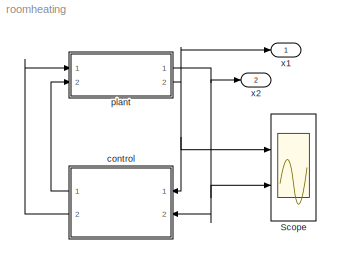
MODEL roomheating
KIND model
BLOCK [Scope] Scope
  DataFormat = StructureWithTime
  Floating = off
  MaxDataPoints = 999999999
  NumInputPorts = 2
  Ports = [2]
  SID = 120
  SampleTime = 0
  ShowLegends = off
  TimeRange = 0.09
  YMax = 20.003~100.004
  YMin = 19.998~99.997
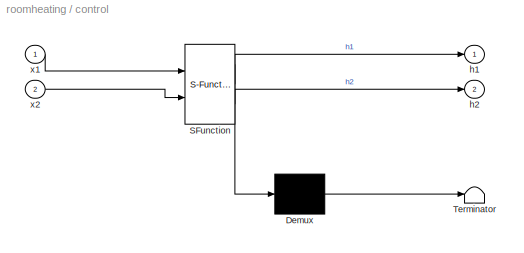
BLOCK [SubSystem] control
  ErrorFcn = Stateflow.Translate.translate
  PermitHierarchicalResolution = ExplicitOnly
  Ports = [2, 2]
  RequestExecContextInheritance = off
  SFBlockType = Chart
  SID = 154
  TreatAsAtomicUnit = on
BLOCK [Demux] control/ Demux 
  Outputs = 1
  Ports = [1, 1]
  SID = 154::47
BLOCK [S-Function] control/ SFunction 
  EnableBusSupport = on
  FunctionName = sf_sfun
  PortCounts = [2 3]
  Ports = [2, 3]
  SID = 154::46
  Tag = Stateflow S-Function roomheating 2
BLOCK [Terminator] control/ Terminator 
  SID = 154::48
BLOCK [Outport] control/h1
  IconDisplay = Port number
  SID = 154::45
BLOCK [Outport] control/h2
  IconDisplay = Port number
  Port = 2
  SID = 154::49
BLOCK [Inport] control/x1
  IconDisplay = Port number
  SID = 154::42
BLOCK [Inport] control/x2
  IconDisplay = Port number
  Port = 2
  SID = 154::43
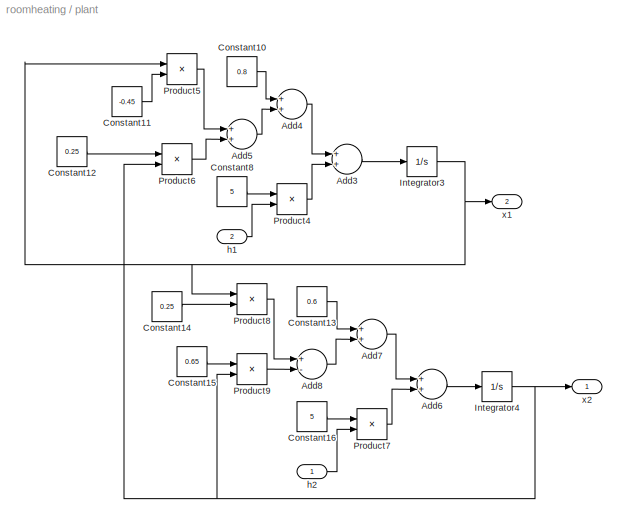
BLOCK [SubSystem] plant
  Ports = [2, 2]
  RequestExecContextInheritance = off
  SID = 132
BLOCK [Sum] plant/Add3
  InputSameDT = off
  OutDataTypeStr = Inherit: Inherit via internal rule
  Ports = [2, 1]
  SID = 170
  SampleTime = 0.001
  SaturateOnIntegerOverflow = off
BLOCK [Sum] plant/Add4
  InputSameDT = off
  OutDataTypeStr = Inherit: Inherit via internal rule
  Ports = [2, 1]
  SID = 173
  SampleTime = 0.001
  SaturateOnIntegerOverflow = off
BLOCK [Sum] plant/Add5
  InputSameDT = off
  OutDataTypeStr = Inherit: Inherit via internal rule
  Ports = [2, 1]
  SID = 175
  SampleTime = 0.001
  SaturateOnIntegerOverflow = off
BLOCK [Sum] plant/Add6
  InputSameDT = off
  OutDataTypeStr = Inherit: Inherit via internal rule
  Ports = [2, 1]
  SID = 181
  SampleTime = 0.001
  SaturateOnIntegerOverflow = off
BLOCK [Sum] plant/Add7
  InputSameDT = off
  OutDataTypeStr = Inherit: Inherit via internal rule
  Ports = [2, 1]
  SID = 182
  SampleTime = 0.001
  SaturateOnIntegerOverflow = off
BLOCK [Sum] plant/Add8
  InputSameDT = off
  Inputs = +-
  OutDataTypeStr = Inherit: Inherit via internal rule
  Ports = [2, 1]
  SID = 183
  SampleTime = 0.001
  SaturateOnIntegerOverflow = off
BLOCK [Constant] plant/Constant10
  SID = 174
  Value = 0.8
BLOCK [Constant] plant/Constant11
  SID = 178
  Value = -0.45
BLOCK [Constant] plant/Constant12
  SID = 179
  Value = 0.25
BLOCK [Constant] plant/Constant13
  SID = 184
  Value = 0.6
BLOCK [Constant] plant/Constant14
  SID = 185
  Value = 0.25
BLOCK [Constant] plant/Constant15
  SID = 186
  Value = 0.65
BLOCK [Constant] plant/Constant16
  SID = 187
  Value = 5
BLOCK [Constant] plant/Constant8
  SID = 168
  Value = 5
BLOCK [Integrator] plant/Integrator3
  InitialCondition = 10
  Ports = [1, 1]
  SID = 171
BLOCK [Integrator] plant/Integrator4
  InitialCondition = 10
  Ports = [1, 1]
  SID = 188
BLOCK [Product] plant/Product4
  InputSameDT = off
  OutDataTypeStr = Inherit: Inherit via internal rule
  Ports = [2, 1]
  SID = 169
  SampleTime = 0.001
  SaturateOnIntegerOverflow = off
BLOCK [Product] plant/Product5
  InputSameDT = off
  OutDataTypeStr = Inherit: Inherit via internal rule
  Ports = [2, 1]
  SID = 176
  SampleTime = 0.001
  SaturateOnIntegerOverflow = off
BLOCK [Product] plant/Product6
  InputSameDT = off
  OutDataTypeStr = Inherit: Inherit via internal rule
  Ports = [2, 1]
  SID = 177
  SampleTime = 0.001
  SaturateOnIntegerOverflow = off
BLOCK [Product] plant/Product7
  InputSameDT = off
  OutDataTypeStr = Inherit: Inherit via internal rule
  Ports = [2, 1]
  SID = 189
  SampleTime = 0.001
  SaturateOnIntegerOverflow = off
BLOCK [Product] plant/Product8
  InputSameDT = off
  OutDataTypeStr = Inherit: Inherit via internal rule
  Ports = [2, 1]
  SID = 190
  SampleTime = 0.001
  SaturateOnIntegerOverflow = off
BLOCK [Product] plant/Product9
  InputSameDT = off
  OutDataTypeStr = Inherit: Inherit via internal rule
  Ports = [2, 1]
  SID = 191
  SampleTime = 0.001
  SaturateOnIntegerOverflow = off
BLOCK [Inport] plant/h1
  IconDisplay = Port number
  Port = 2
  SID = 133
  SampleTime = 0.001
BLOCK [Inport] plant/h2
  IconDisplay = Port number
  SID = 180
  SampleTime = 0.001
BLOCK [Outport] plant/x1
  IconDisplay = Port number
  Port = 2
  SID = 172
  SampleTime = 0.0001
BLOCK [Outport] plant/x2
  IconDisplay = Port number
  SID = 192
  SampleTime = 0.0001
BLOCK [Outport] x1
  IconDisplay = Port number
  SID = 193
  SampleTime = 0
BLOCK [Outport] x2
  IconDisplay = Port number
  Port = 2
  SID = 194
  SampleTime = 0
LINE control/ Demux :1 -> control/ Terminator :1
LINE control/ SFunction :1 -> control/ Demux :1
LINE control/ SFunction :2 -> control/h1:1
LINE control/ SFunction :3 -> control/h2:1
LINE control/x1:1 -> control/ SFunction :1
LINE control/x2:1 -> control/ SFunction :2
LINE control:1 -> plant:2
LINE control:2 -> plant:1
LINE plant/Add3:1 -> plant/Integrator3:1
LINE plant/Add4:1 -> plant/Add3:1
LINE plant/Add5:1 -> plant/Add4:2
LINE plant/Add6:1 -> plant/Integrator4:1
LINE plant/Add7:1 -> plant/Add6:1
LINE plant/Add8:1 -> plant/Add7:2
LINE plant/Constant10:1 -> plant/Add4:1
LINE plant/Constant11:1 -> plant/Product5:2
LINE plant/Constant12:1 -> plant/Product6:1
LINE plant/Constant13:1 -> plant/Add7:1
LINE plant/Constant14:1 -> plant/Product8:2
LINE plant/Constant15:1 -> plant/Product9:1
LINE plant/Constant16:1 -> plant/Product7:1
LINE plant/Constant8:1 -> plant/Product4:1
NET plant/Integrator3:1 -> plant/Product5:1, plant/Product8:1, plant/x1:1
NET plant/Integrator4:1 -> plant/Product6:2, plant/Product9:2, plant/x2:1
LINE plant/Product4:1 -> plant/Add3:2
LINE plant/Product5:1 -> plant/Add5:1
LINE plant/Product6:1 -> plant/Add5:2
LINE plant/Product7:1 -> plant/Add6:2
LINE plant/Product8:1 -> plant/Add8:1
LINE plant/Product9:1 -> plant/Add8:2
LINE plant/h1:1 -> plant/Product4:2
LINE plant/h2:1 -> plant/Product7:2
NET plant:1 -> Scope:2, control:2, x2:1
NET plant:2 -> Scope:1, control:1, x1:1
note: NET lines group one-source signal fan-out (src -> all destinations, sorted); 1:1 wires keep LINE
CHART control states=7 transitions=13
  STATE_LABEL 'room1_on\\nentry:\\nh1=1;\\nh2=0;'
  STATE_LABEL 'changeto2\\nentry:\\nowner=2;\\nh1=0;\\nh2=1;'
  STATE_LABEL 'room1_off\\nentry:\\nh1=0;'
  STATE_LABEL 'decide'
  STATE_LABEL 'changeto1\\nentry:\\nowner=1;\\nh1=1;\\nh2=0;'
  STATE_LABEL 'room2_on\\nentry:\\nh1=0;\\nh2=1;'
  STATE_LABEL 'room2_off\\nentry:\\nh2=0;'
